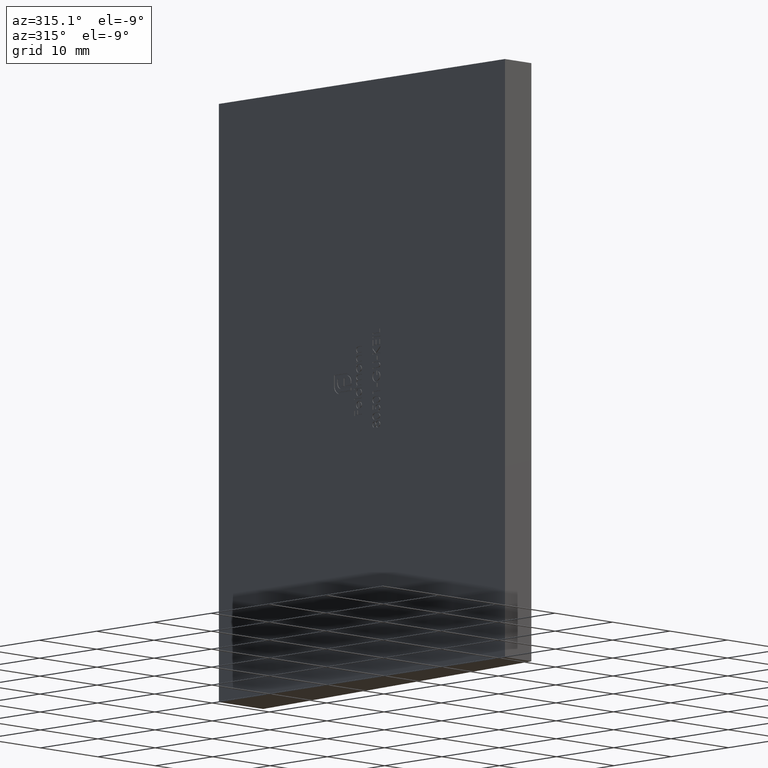
[diagram: clean part render]
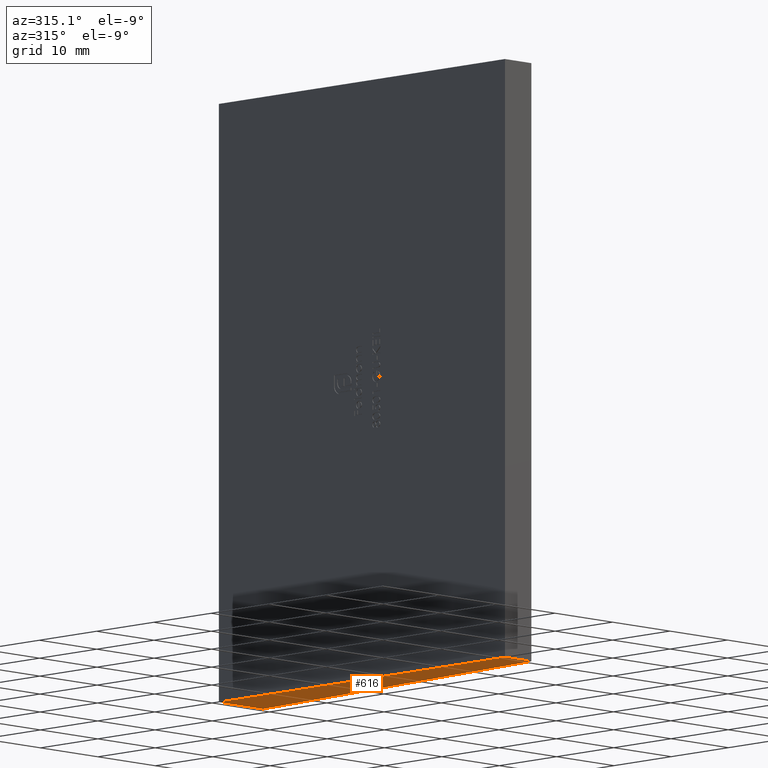
[diagram: same view with one face highlighted and labeled with its STEP entity id]
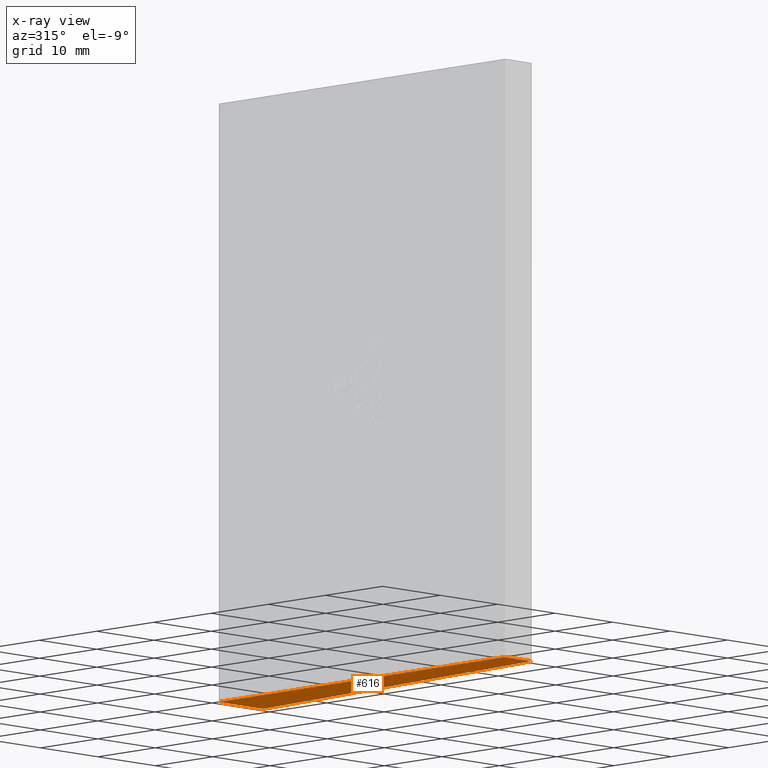
[diagram: x-ray of the same camera — body ghosted, the highlighted face saturated]
A machine part, auxiliary view. The second image highlights one B-rep face of the part: STEP entity #616.
The next image is the same camera in x-ray: the body ghosted, the highlighted face saturated — about 0% of this face is hidden behind the body in this view.
In plain terms, the highlighted planar face has unit normal (0, 0, -1).
Its self-contained STEP definition (entity closure, byte-faithful):
#36 = LINE ( 'NONE', #12051, #2156 ) ;
#616 = ADVANCED_FACE ( 'NONE', ( #15777 ), #7494, .T. ) ;
#686 = DIRECTION ( 'NONE',  ( 1.908195823574487804E-16, -1.000000000000000000, -0.000000000000000000 ) ) ;
#725 = CARTESIAN_POINT ( 'NONE',  ( 3.849999999999997868, 25.00000000000000000, -37.35000000000000142 ) ) ;
#866 = VERTEX_POINT ( 'NONE', #12347 ) ;
#982 = VECTOR ( 'NONE', #11703, 1000.000000000000227 ) ;
#2156 = VECTOR ( 'NONE', #5882, 1000.000000000000000 ) ;
#3157 = EDGE_CURVE ( 'NONE', #10085, #9326, #4837, .T. ) ;
#3653 = ORIENTED_EDGE ( 'NONE', *, *, #3157, .F. ) ;
#3794 = CARTESIAN_POINT ( 'NONE',  ( 0.000000000000000000, 0.000000000000000000, -37.35000000000000142 ) ) ;
#4119 = CARTESIAN_POINT ( 'NONE',  ( 0.7500000000000072164, -25.00000000000000000, -37.35000000000000142 ) ) ;
#4255 = EDGE_CURVE ( 'NONE', #10488, #866, #36, .T. ) ;
#4328 = CARTESIAN_POINT ( 'NONE',  ( -3.849999999999992539, -25.00000000000000000, -37.35000000000000142 ) ) ;
#4466 = VECTOR ( 'NONE', #12809, 1000.000000000000000 ) ;
#4708 = EDGE_CURVE ( 'NONE', #9326, #10488, #7301, .T. ) ;
#4837 = LINE ( 'NONE', #4119, #4466 ) ;
#5145 = DIRECTION ( 'NONE',  ( -1.000000000000000000, 0.000000000000000000, -0.000000000000000000 ) ) ;
#5882 = DIRECTION ( 'NONE',  ( -1.000000000000000000, -0.000000000000000000, -0.000000000000000000 ) ) ;
#6948 = CARTESIAN_POINT ( 'NONE',  ( 0.7500000000000072164, -25.00000000000000000, -37.35000000000000142 ) ) ;
#7301 = LINE ( 'NONE', #725, #982 ) ;
#7494 = PLANE ( 'NONE',  #7544 ) ;
#7544 = AXIS2_PLACEMENT_3D ( 'NONE', #3794, #13549, #5145 ) ;
#9125 = LINE ( 'NONE', #4328, #13330 ) ;
#9190 = EDGE_LOOP ( 'NONE', ( #3653, #12862, #10332, #12567 ) ) ;
#9326 = VERTEX_POINT ( 'NONE', #6948 ) ;
#10085 = VERTEX_POINT ( 'NONE', #10380 ) ;
#10332 = ORIENTED_EDGE ( 'NONE', *, *, #4255, .F. ) ;
#10380 = CARTESIAN_POINT ( 'NONE',  ( -3.849999999999992539, -25.00000000000000000, -37.35000000000000142 ) ) ;
#10488 = VERTEX_POINT ( 'NONE', #10579 ) ;
#10579 = CARTESIAN_POINT ( 'NONE',  ( 3.849999999999997868, 25.00000000000000000, -37.35000000000000142 ) ) ;
#11703 = DIRECTION ( 'NONE',  ( 0.06188117845299602460, 0.9980835234354228369, -0.000000000000000000 ) ) ;
#12051 = CARTESIAN_POINT ( 'NONE',  ( -3.850000000000002309, 25.00000000000000000, -37.35000000000000142 ) ) ;
#12347 = CARTESIAN_POINT ( 'NONE',  ( -3.850000000000002309, 25.00000000000000000, -37.35000000000000142 ) ) ;
#12567 = ORIENTED_EDGE ( 'NONE', *, *, #4708, .F. ) ;
#12685 = EDGE_CURVE ( 'NONE', #866, #10085, #9125, .T. ) ;
#12809 = DIRECTION ( 'NONE',  ( 1.000000000000000000, -0.000000000000000000, -0.000000000000000000 ) ) ;
#12862 = ORIENTED_EDGE ( 'NONE', *, *, #12685, .F. ) ;
#13330 = VECTOR ( 'NONE', #686, 1000.000000000000000 ) ;
#13549 = DIRECTION ( 'NONE',  ( 0.000000000000000000, 0.000000000000000000, -1.000000000000000000 ) ) ;
#15777 = FACE_OUTER_BOUND ( 'NONE', #9190, .T. ) ;